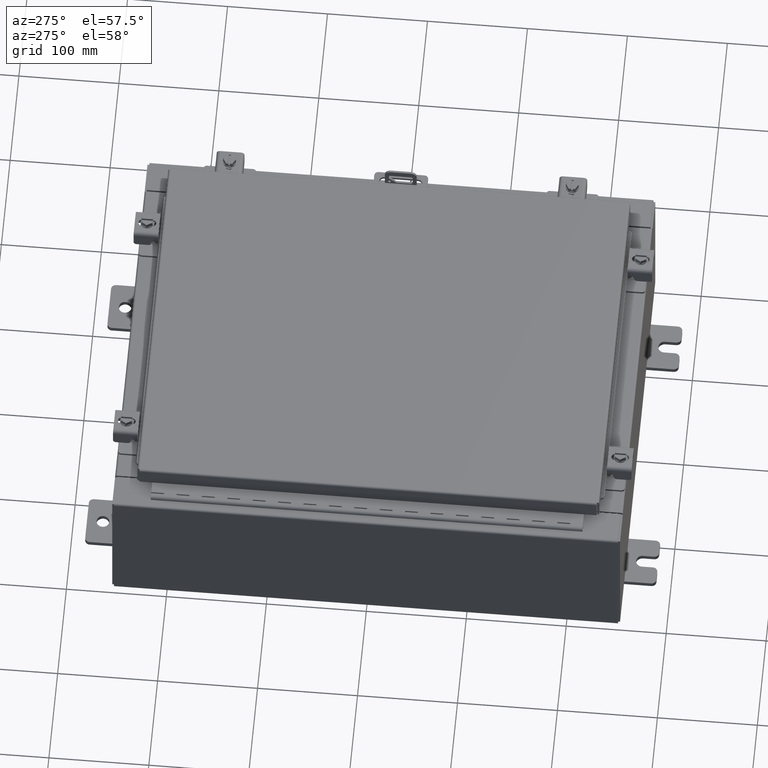
[diagram: clean part render]
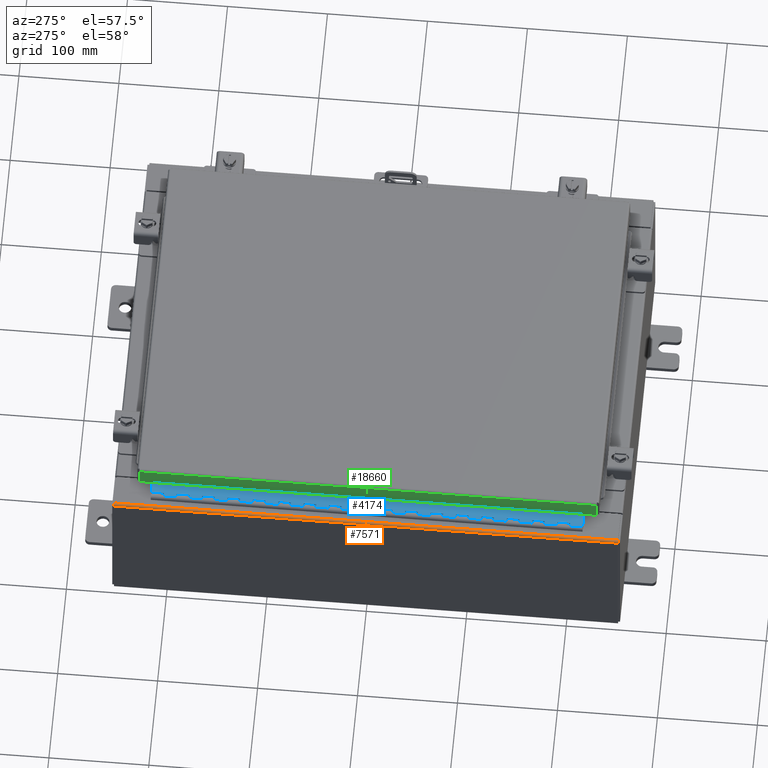
[diagram: same view with three faces highlighted in distinct colors, each labeled with its STEP entity id]
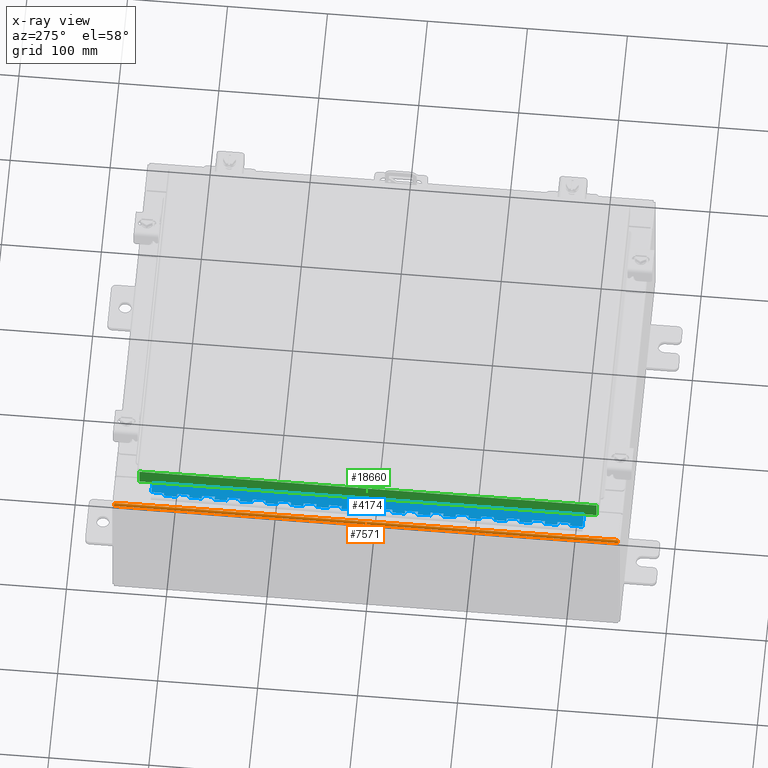
[diagram: x-ray of the same camera — body ghosted, the three highlighted faces saturated]
A machine part, auxiliary view with three faces highlighted in distinct colors.
The next image is the same camera in x-ray (body ghosted, the three faces saturated) — at least one of them is partly hidden behind the body in this view.
Their STEP definitions:

[orange] entity #7571 — the highlighted cylindrical surface (edge-blend (fillet) strip) has radius 2.2276 mm, axis along (-0, -1, -0).
#4315 = FACE_OUTER_BOUND ( 'NONE', #11433, .T. ) ;
#5031 = AXIS2_PLACEMENT_3D ( 'NONE', #12334, #28187, #14588 ) ;
#5075 = LINE ( 'NONE', #14964, #10418 ) ;
#5908 = DIRECTION ( 'NONE',  ( 0.0000000000000000000, 1.000000000000000000, 0.0000000000000000000 ) ) ;
#6106 = ORIENTED_EDGE ( 'NONE', *, *, #6834, .T. ) ;
#6834 = EDGE_CURVE ( 'NONE', #11767, #11529, #27495, .T. ) ;
#7571 = ADVANCED_FACE ( 'NONE', ( #4315 ), #27072, .T. ) ;
#7618 = DIRECTION ( 'NONE',  ( -0.0000000000000000000, 1.000000000000000000, -5.504816970095139000E-017 ) ) ;
#8008 = CARTESIAN_POINT ( 'NONE',  ( -7.912300000000017900, 9.925299999999996500, 5.925299999999999100 ) ) ;
#8596 = EDGE_CURVE ( 'NONE', #11767, #10946, #25597, .T. ) ;
#8875 = CARTESIAN_POINT ( 'NONE',  ( -7.912300000000017900, -9.925299999999998200, 5.925300000000000000 ) ) ;
#10271 = CARTESIAN_POINT ( 'NONE',  ( -7.912300000000017900, -9.925300000000000000, 5.837599999999999200 ) ) ;
#10413 = CARTESIAN_POINT ( 'NONE',  ( -8.000000000000017800, -9.925300000000000000, 5.837599999999999200 ) ) ;
#10418 = VECTOR ( 'NONE', #5908, 39.37007874015748100 ) ;
#10717 = CARTESIAN_POINT ( 'NONE',  ( -8.000000000000017800, 9.925299999999996500, 5.837599999999999200 ) ) ;
#10946 = VERTEX_POINT ( 'NONE', #10413 ) ;
#11017 = VERTEX_POINT ( 'NONE', #10717 ) ;
#11433 = EDGE_LOOP ( 'NONE', ( #26999, #24791, #6106, #19754 ) ) ;
#11529 = VERTEX_POINT ( 'NONE', #8008 ) ;
#11767 = VERTEX_POINT ( 'NONE', #8875 ) ;
#12130 = CARTESIAN_POINT ( 'NONE',  ( -7.912300000000017900, 9.925299999999998200, 5.925299999999999100 ) ) ;
#12293 = DIRECTION ( 'NONE',  ( 0.0000000000000000000, 1.000000000000000000, 0.0000000000000000000 ) ) ;
#12334 = CARTESIAN_POINT ( 'NONE',  ( -7.912300000000017900, -9.925300000000000000, 5.837599999999999200 ) ) ;
#13698 = EDGE_CURVE ( 'NONE', #11017, #11529, #14383, .T. ) ;
#14383 = CIRCLE ( 'NONE', #22685, 0.08770000000000026400 ) ;
#14588 = DIRECTION ( 'NONE',  ( 0.0000000000000000000, 0.0000000000000000000, -1.000000000000000000 ) ) ;
#14841 = DIRECTION ( 'NONE',  ( -0.0000000000000000000, -1.000000000000000000, -0.0000000000000000000 ) ) ;
#14939 = AXIS2_PLACEMENT_3D ( 'NONE', #10271, #14841, #28441 ) ;
#14964 = CARTESIAN_POINT ( 'NONE',  ( -8.000000000000017800, -9.925300000000000000, 5.837599999999999200 ) ) ;
#17551 = EDGE_CURVE ( 'NONE', #10946, #11017, #5075, .T. ) ;
#19754 = ORIENTED_EDGE ( 'NONE', *, *, #13698, .F. ) ;
#21466 = VECTOR ( 'NONE', #7618, 39.37007874015748100 ) ;
#22685 = AXIS2_PLACEMENT_3D ( 'NONE', #25857, #12293, #28153 ) ;
#24791 = ORIENTED_EDGE ( 'NONE', *, *, #8596, .F. ) ;
#25597 = CIRCLE ( 'NONE', #5031, 0.08770000000000026400 ) ;
#25857 = CARTESIAN_POINT ( 'NONE',  ( -7.912300000000017900, 9.925299999999996500, 5.837599999999999200 ) ) ;
#26999 = ORIENTED_EDGE ( 'NONE', *, *, #17551, .F. ) ;
#27072 = CYLINDRICAL_SURFACE ( 'NONE', #14939, 0.08770000000000026400 ) ;
#27495 = LINE ( 'NONE', #12130, #21466 ) ;
#28153 = DIRECTION ( 'NONE',  ( 0.0000000000000000000, 0.0000000000000000000, -1.000000000000000000 ) ) ;
#28187 = DIRECTION ( 'NONE',  ( -0.0000000000000000000, -1.000000000000000000, -0.0000000000000000000 ) ) ;
#28441 = DIRECTION ( 'NONE',  ( -1.245996804407870000E-014, 0.0000000000000000000, 1.000000000000000000 ) ) ;

[blue] entity #4174 — the highlighted planar face has unit normal (-0, -0, 1).
#46 = DIRECTION ( 'NONE',  ( 0.0000000000000000000, -0.0000000000000000000, -1.000000000000000000 ) ) ;
#50 = DIRECTION ( 'NONE',  ( 0.0000000000000000000, 0.0000000000000000000, 1.000000000000000000 ) ) ;
#72 = CARTESIAN_POINT ( 'NONE',  ( -0.6869999999999978300, 0.6754999999999996600, -14.99999999999999800 ) ) ;
#80 = ORIENTED_EDGE ( 'NONE', *, *, #29222, .F. ) ;
#101 = VECTOR ( 'NONE', #19774, 39.37007874015748100 ) ;
#137 = ORIENTED_EDGE ( 'NONE', *, *, #14637, .T. ) ;
#204 = LINE ( 'NONE', #23957, #6274 ) ;
#218 = VECTOR ( 'NONE', #26793, 39.37007874015748100 ) ;
#233 = VERTEX_POINT ( 'NONE', #25913 ) ;
#285 = VECTOR ( 'NONE', #5154, 39.37007874015748100 ) ;
#314 = CARTESIAN_POINT ( 'NONE',  ( -0.6869999999999982800, 0.5504999999999997700, -12.49999999999999800 ) ) ;
#381 = EDGE_CURVE ( 'NONE', #1120, #26564, #2727, .T. ) ;
#430 = CARTESIAN_POINT ( 'NONE',  ( -0.6869999999999973900, 0.8004999999999995500, -4.000000000000000000 ) ) ;
#472 = VERTEX_POINT ( 'NONE', #18258 ) ;
#486 = CARTESIAN_POINT ( 'NONE',  ( -0.6869999999999982800, 0.5504999999999997700, -7.499999999999999100 ) ) ;
#512 = CARTESIAN_POINT ( 'NONE',  ( -0.6869999999999982800, 0.5504999999999997700, -4.500000000000000000 ) ) ;
#596 = LINE ( 'NONE', #23922, #17327 ) ;
#597 = EDGE_CURVE ( 'NONE', #666, #7732, #21937, .T. ) ;
#610 = DIRECTION ( 'NONE',  ( 0.0000000000000000000, -0.0000000000000000000, -1.000000000000000000 ) ) ;
#666 = VERTEX_POINT ( 'NONE', #14882 ) ;
#708 = CARTESIAN_POINT ( 'NONE',  ( -0.6869999999999978300, 0.6754999999999996600, -17.00000000000000000 ) ) ;
#743 = CARTESIAN_POINT ( 'NONE',  ( -0.6869999999999982800, 0.5504999999999997700, -13.50000000000000000 ) ) ;
#814 = VECTOR ( 'NONE', #25143, 39.37007874015748100 ) ;
#843 = CARTESIAN_POINT ( 'NONE',  ( -0.6869999999999978300, 0.6754999999999996600, -9.000000000000000000 ) ) ;
#935 = EDGE_CURVE ( 'NONE', #23140, #14782, #2690, .T. ) ;
#1051 = EDGE_CURVE ( 'NONE', #7281, #15186, #10521, .T. ) ;
#1118 = CARTESIAN_POINT ( 'NONE',  ( -0.6869999999999973900, 0.8004999999999995500, -9.000000000000000000 ) ) ;
#1120 = VERTEX_POINT ( 'NONE', #28410 ) ;
#1189 = EDGE_CURVE ( 'NONE', #27347, #1848, #8391, .T. ) ;
#1250 = DIRECTION ( 'NONE',  ( -3.389037039080723100E-015, -1.000000000000000000, 0.0000000000000000000 ) ) ;
#1268 = LINE ( 'NONE', #12712, #24737 ) ;
#1285 = DIRECTION ( 'NONE',  ( 0.0000000000000000000, 0.0000000000000000000, 1.000000000000000000 ) ) ;
#1320 = CARTESIAN_POINT ( 'NONE',  ( -0.6869999999999978300, 0.6754999999999996600, -5.000000000000000000 ) ) ;
#1331 = CARTESIAN_POINT ( 'NONE',  ( -0.6869999999999982800, 0.5504999999999997700, -9.000000000000000000 ) ) ;
#1448 = CARTESIAN_POINT ( 'NONE',  ( -0.6869999999999973900, 0.8004999999999995500, -6.000000000000000900 ) ) ;
#1497 = LINE ( 'NONE', #14464, #24968 ) ;
#1560 = ORIENTED_EDGE ( 'NONE', *, *, #10915, .F. ) ;
#1570 = VERTEX_POINT ( 'NONE', #23733 ) ;
#1586 = VECTOR ( 'NONE', #16740, 39.37007874015748100 ) ;
#1848 = VERTEX_POINT ( 'NONE', #18741 ) ;
#1865 = ORIENTED_EDGE ( 'NONE', *, *, #2869, .F. ) ;
#1870 = DIRECTION ( 'NONE',  ( 0.0000000000000000000, -0.0000000000000000000, -1.000000000000000000 ) ) ;
#1933 = ORIENTED_EDGE ( 'NONE', *, *, #25178, .F. ) ;
#2051 = LINE ( 'NONE', #12637, #25525 ) ;
#2148 = ORIENTED_EDGE ( 'NONE', *, *, #17094, .T. ) ;
#2163 = VERTEX_POINT ( 'NONE', #26252 ) ;
#2165 = VERTEX_POINT ( 'NONE', #24354 ) ;
#2167 = VECTOR ( 'NONE', #1285, 39.37007874015748100 ) ;
#2177 = VECTOR ( 'NONE', #4654, 39.37007874015748100 ) ;
#2437 = DIRECTION ( 'NONE',  ( -3.389037039080723100E-015, -1.000000000000000000, 0.0000000000000000000 ) ) ;
#2458 = VERTEX_POINT ( 'NONE', #2581 ) ;
#2490 = CARTESIAN_POINT ( 'NONE',  ( -0.6869999999999982800, 0.5504999999999997700, -1.499999999999999800 ) ) ;
#2539 = VECTOR ( 'NONE', #3733, 39.37007874015748100 ) ;
#2543 = CARTESIAN_POINT ( 'NONE',  ( -0.6869999999999978300, 0.6754999999999996600, -2.000000000000000000 ) ) ;
#2581 = CARTESIAN_POINT ( 'NONE',  ( -0.6869999999999978300, 0.6754999999999996600, -11.00000000000000000 ) ) ;
#2585 = LINE ( 'NONE', #17940, #26042 ) ;
#2650 = EDGE_CURVE ( 'NONE', #22137, #17771, #20390, .T. ) ;
#2658 = CARTESIAN_POINT ( 'NONE',  ( -0.6869999999999978300, 0.6754999999999996600, -12.99999999999999800 ) ) ;
#2686 = ORIENTED_EDGE ( 'NONE', *, *, #6469, .F. ) ;
#2690 = LINE ( 'NONE', #12444, #8047 ) ;
#2722 = VECTOR ( 'NONE', #5500, 39.37007874015748100 ) ;
#2727 = LINE ( 'NONE', #11792, #20173 ) ;
#2749 = DIRECTION ( 'NONE',  ( 3.389037039080723100E-015, 1.000000000000000000, -0.0000000000000000000 ) ) ;
#2869 = EDGE_CURVE ( 'NONE', #8616, #28524, #14681, .T. ) ;
#2883 = VECTOR ( 'NONE', #21518, 39.37007874015748100 ) ;
#2909 = LINE ( 'NONE', #11373, #27078 ) ;
#2949 = EDGE_CURVE ( 'NONE', #12936, #26286, #25301, .T. ) ;
#3078 = VECTOR ( 'NONE', #28720, 39.37007874015748100 ) ;
#3114 = VERTEX_POINT ( 'NONE', #743 ) ;
#3162 = VECTOR ( 'NONE', #11599, 39.37007874015748100 ) ;
#3191 = LINE ( 'NONE', #18794, #26672 ) ;
#3211 = CARTESIAN_POINT ( 'NONE',  ( -0.6869999999999978300, 0.6754999999999996600, -7.499999999999999100 ) ) ;
#3242 = LINE ( 'NONE', #1448, #2539 ) ;
#3341 = CARTESIAN_POINT ( 'NONE',  ( -0.6869999999999978300, 0.6754999999999996600, -8.500000000000000000 ) ) ;
#3398 = VERTEX_POINT ( 'NONE', #1331 ) ;
#3461 = CARTESIAN_POINT ( 'NONE',  ( -0.6869999999999978300, 0.6754999999999996600, -17.00000000000000000 ) ) ;
#3638 = DIRECTION ( 'NONE',  ( 3.389037039080723100E-015, 1.000000000000000000, -0.0000000000000000000 ) ) ;
#3733 = DIRECTION ( 'NONE',  ( 3.389037039080723100E-015, 1.000000000000000000, -0.0000000000000000000 ) ) ;
#3740 = VECTOR ( 'NONE', #20034, 39.37007874015748100 ) ;
#3750 = CARTESIAN_POINT ( 'NONE',  ( -0.6869999999999982800, 0.5504999999999997700, -3.500000000000000000 ) ) ;
#3846 = VECTOR ( 'NONE', #14680, 39.37007874015748100 ) ;
#3953 = DIRECTION ( 'NONE',  ( -3.389037039080723100E-015, -1.000000000000000000, 0.0000000000000000000 ) ) ;
#3962 = VECTOR ( 'NONE', #20637, 39.37007874015748100 ) ;
#3964 = ORIENTED_EDGE ( 'NONE', *, *, #22943, .F. ) ;
#3965 = VECTOR ( 'NONE', #50, 39.37007874015748100 ) ;
#3986 = EDGE_CURVE ( 'NONE', #14836, #27347, #25739, .T. ) ;
#4062 = LINE ( 'NONE', #13441, #26103 ) ;
#4112 = ORIENTED_EDGE ( 'NONE', *, *, #21932, .F. ) ;
#4174 = ADVANCED_FACE ( 'NONE', ( #21497 ), #12140, .T. ) ;
#4193 = CARTESIAN_POINT ( 'NONE',  ( -0.6869999999999973900, 0.8004999999999995500, -16.00000000000000000 ) ) ;
#4231 = CARTESIAN_POINT ( 'NONE',  ( -0.6869999999999982800, 0.5504999999999997700, -2.500000000000000000 ) ) ;
#4234 = EDGE_CURVE ( 'NONE', #6882, #2165, #13311, .T. ) ;
#4390 = VERTEX_POINT ( 'NONE', #15553 ) ;
#4522 = EDGE_CURVE ( 'NONE', #24466, #13046, #12944, .T. ) ;
#4543 = VECTOR ( 'NONE', #21213, 39.37007874015748100 ) ;
#4576 = EDGE_CURVE ( 'NONE', #13442, #15213, #22891, .T. ) ;
#4613 = CARTESIAN_POINT ( 'NONE',  ( -0.6869999999999982800, 0.5504999999999997700, -4.000000000000000000 ) ) ;
#4654 = DIRECTION ( 'NONE',  ( 3.389037039080723100E-015, 1.000000000000000000, -0.0000000000000000000 ) ) ;
#4783 = VERTEX_POINT ( 'NONE', #10734 ) ;
#5069 = CARTESIAN_POINT ( 'NONE',  ( -0.6869999999999978300, 0.6754999999999996600, -17.00000000000000000 ) ) ;
#5076 = CARTESIAN_POINT ( 'NONE',  ( -0.6869999999999973900, 0.8004999999999995500, -16.50000000000000000 ) ) ;
#5103 = VECTOR ( 'NONE', #25973, 39.37007874015748100 ) ;
#5153 = CARTESIAN_POINT ( 'NONE',  ( -0.6869999999999982800, 0.5504999999999997700, -1.499999999999999800 ) ) ;
#5154 = DIRECTION ( 'NONE',  ( 0.0000000000000000000, -0.0000000000000000000, -1.000000000000000000 ) ) ;
#5283 = EDGE_CURVE ( 'NONE', #4783, #5602, #12264, .T. ) ;
#5305 = VERTEX_POINT ( 'NONE', #15377 ) ;
#5387 = LINE ( 'NONE', #7941, #28880 ) ;
#5395 = DIRECTION ( 'NONE',  ( 3.389037039080723100E-015, 1.000000000000000000, -0.0000000000000000000 ) ) ;
#5500 = DIRECTION ( 'NONE',  ( 0.0000000000000000000, -0.0000000000000000000, -1.000000000000000000 ) ) ;
#5556 = VECTOR ( 'NONE', #2749, 39.37007874015748100 ) ;
#5602 = VERTEX_POINT ( 'NONE', #23199 ) ;
#5616 = LINE ( 'NONE', #17319, #23057 ) ;
#5709 = EDGE_CURVE ( 'NONE', #5602, #23303, #1497, .T. ) ;
#5777 = ORIENTED_EDGE ( 'NONE', *, *, #21732, .F. ) ;
#5843 = VECTOR ( 'NONE', #9004, 39.37007874015748100 ) ;
#5895 = ORIENTED_EDGE ( 'NONE', *, *, #23792, .F. ) ;
#5916 = CARTESIAN_POINT ( 'NONE',  ( -0.6869999999999978300, 0.6754999999999996600, -17.00000000000000000 ) ) ;
#5918 = VERTEX_POINT ( 'NONE', #12866 ) ;
#6024 = LINE ( 'NONE', #5916, #17405 ) ;
#6065 = DIRECTION ( 'NONE',  ( 0.0000000000000000000, -0.0000000000000000000, -1.000000000000000000 ) ) ;
#6066 = CARTESIAN_POINT ( 'NONE',  ( -0.6869999999999973900, 0.8004999999999995500, -2.500000000000000000 ) ) ;
#6081 = ORIENTED_EDGE ( 'NONE', *, *, #6158, .F. ) ;
#6158 = EDGE_CURVE ( 'NONE', #15231, #11274, #2909, .T. ) ;
#6159 = LINE ( 'NONE', #18321, #23573 ) ;
#6193 = EDGE_CURVE ( 'NONE', #17232, #13195, #25656, .T. ) ;
#6214 = ORIENTED_EDGE ( 'NONE', *, *, #3986, .F. ) ;
#6251 = ORIENTED_EDGE ( 'NONE', *, *, #10054, .F. ) ;
#6274 = VECTOR ( 'NONE', #17119, 39.37007874015748100 ) ;
#6286 = LINE ( 'NONE', #13210, #218 ) ;
#6321 = EDGE_CURVE ( 'NONE', #2163, #22109, #5387, .T. ) ;
#6358 = DIRECTION ( 'NONE',  ( 0.0000000000000000000, 0.0000000000000000000, 1.000000000000000000 ) ) ;
#6371 = DIRECTION ( 'NONE',  ( -3.389037039080723100E-015, -1.000000000000000000, 0.0000000000000000000 ) ) ;
#6397 = ORIENTED_EDGE ( 'NONE', *, *, #25057, .T. ) ;
#6414 = EDGE_CURVE ( 'NONE', #12152, #14051, #3242, .T. ) ;
#6462 = ORIENTED_EDGE ( 'NONE', *, *, #27454, .T. ) ;
#6469 = EDGE_CURVE ( 'NONE', #7385, #1120, #24576, .T. ) ;
#6485 = LINE ( 'NONE', #21093, #18582 ) ;
#6499 = VERTEX_POINT ( 'NONE', #4231 ) ;
#6530 = ORIENTED_EDGE ( 'NONE', *, *, #15601, .F. ) ;
#6598 = CARTESIAN_POINT ( 'NONE',  ( -0.6869999999999982800, 0.5504999999999997700, -16.50000000000000000 ) ) ;
#6638 = LINE ( 'NONE', #19625, #11273 ) ;
#6649 = VERTEX_POINT ( 'NONE', #4613 ) ;
#6663 = CARTESIAN_POINT ( 'NONE',  ( -0.6869999999999978300, 0.6754999999999996600, -1.000000000000000000 ) ) ;
#6737 = LINE ( 'NONE', #1118, #23447 ) ;
#6847 = ORIENTED_EDGE ( 'NONE', *, *, #1189, .F. ) ;
#6851 = CARTESIAN_POINT ( 'NONE',  ( -0.6869999999999973900, 0.8004999999999995500, -4.500000000000000000 ) ) ;
#6882 = VERTEX_POINT ( 'NONE', #3211 ) ;
#6964 = ORIENTED_EDGE ( 'NONE', *, *, #935, .T. ) ;
#7005 = VECTOR ( 'NONE', #16450, 39.37007874015748100 ) ;
#7097 = EDGE_CURVE ( 'NONE', #14095, #233, #27099, .T. ) ;
#7140 = EDGE_CURVE ( 'NONE', #23303, #2458, #14337, .T. ) ;
#7145 = LINE ( 'NONE', #11138, #13180 ) ;
#7281 = VERTEX_POINT ( 'NONE', #11488 ) ;
#7311 = VERTEX_POINT ( 'NONE', #11705 ) ;
#7333 = CARTESIAN_POINT ( 'NONE',  ( -0.6869999999999982800, 0.5504999999999997700, -6.499999999999999100 ) ) ;
#7385 = VERTEX_POINT ( 'NONE', #512 ) ;
#7732 = VERTEX_POINT ( 'NONE', #72 ) ;
#7874 = EDGE_CURVE ( 'NONE', #2165, #22137, #8606, .T. ) ;
#7896 = CARTESIAN_POINT ( 'NONE',  ( -0.6869999999999973900, 0.8004999999999995500, -9.500000000000000000 ) ) ;
#7941 = CARTESIAN_POINT ( 'NONE',  ( -0.6869999999999978300, 0.6754999999999996600, -17.00000000000000000 ) ) ;
#8047 = VECTOR ( 'NONE', #12119, 39.37007874015748100 ) ;
#8060 = VECTOR ( 'NONE', #1870, 39.37007874015748100 ) ;
#8282 = VERTEX_POINT ( 'NONE', #13309 ) ;
#8391 = LINE ( 'NONE', #15867, #1586 ) ;
#8498 = CARTESIAN_POINT ( 'NONE',  ( -0.6869999999999973900, 0.8004999999999995500, -0.5000000000000000000 ) ) ;
#8541 = VECTOR ( 'NONE', #24355, 39.37007874015748100 ) ;
#8606 = LINE ( 'NONE', #486, #25994 ) ;
#8616 = VERTEX_POINT ( 'NONE', #25974 ) ;
#8629 = CARTESIAN_POINT ( 'NONE',  ( -0.6869999999999973900, 0.8004999999999995500, -10.00000000000000000 ) ) ;
#8634 = VECTOR ( 'NONE', #3953, 39.37007874015748100 ) ;
#8682 = ORIENTED_EDGE ( 'NONE', *, *, #9366, .T. ) ;
#8775 = LINE ( 'NONE', #22842, #20163 ) ;
#8777 = LINE ( 'NONE', #23591, #2722 ) ;
#8982 = LINE ( 'NONE', #6066, #20376 ) ;
#8985 = CARTESIAN_POINT ( 'NONE',  ( -0.6869999999999982800, 0.5504999999999997700, -10.00000000000000000 ) ) ;
#8991 = VECTOR ( 'NONE', #26862, 39.37007874015748100 ) ;
#9004 = DIRECTION ( 'NONE',  ( -3.389037039080723100E-015, -1.000000000000000000, 0.0000000000000000000 ) ) ;
#9074 = VERTEX_POINT ( 'NONE', #314 ) ;
#9149 = DIRECTION ( 'NONE',  ( -3.389037039080723100E-015, -1.000000000000000000, 0.0000000000000000000 ) ) ;
#9177 = ORIENTED_EDGE ( 'NONE', *, *, #13313, .F. ) ;
#9233 = CARTESIAN_POINT ( 'NONE',  ( -0.6869999999999978300, 0.6754999999999996600, -16.00000000000000000 ) ) ;
#9239 = VERTEX_POINT ( 'NONE', #17295 ) ;
#9264 = DIRECTION ( 'NONE',  ( 0.0000000000000000000, 0.0000000000000000000, 1.000000000000000000 ) ) ;
#9285 = CARTESIAN_POINT ( 'NONE',  ( -0.6869999999999982800, 0.5504999999999997700, -6.499999999999999100 ) ) ;
#9355 = ORIENTED_EDGE ( 'NONE', *, *, #28163, .F. ) ;
#9357 = ORIENTED_EDGE ( 'NONE', *, *, #17845, .T. ) ;
#9366 = EDGE_CURVE ( 'NONE', #6882, #233, #13872, .T. ) ;
#9537 = CARTESIAN_POINT ( 'NONE',  ( -0.6870000000000022800, -0.6245000000000003900, -17.00000000000000000 ) ) ;
#9841 = VECTOR ( 'NONE', #19546, 39.37007874015748100 ) ;
#10018 = ORIENTED_EDGE ( 'NONE', *, *, #23987, .F. ) ;
#10038 = LINE ( 'NONE', #13620, #3965 ) ;
#10054 = EDGE_CURVE ( 'NONE', #15186, #1570, #21333, .T. ) ;
#10193 = CARTESIAN_POINT ( 'NONE',  ( -0.6869999999999973900, 0.8004999999999995500, -14.49999999999999800 ) ) ;
#10521 = LINE ( 'NONE', #10193, #28657 ) ;
#10547 = EDGE_CURVE ( 'NONE', #7311, #7385, #22023, .T. ) ;
#10589 = DIRECTION ( 'NONE',  ( -3.389037039080723100E-015, -1.000000000000000000, 0.0000000000000000000 ) ) ;
#10596 = CARTESIAN_POINT ( 'NONE',  ( -0.6869999999999973900, 0.8004999999999995500, -6.499999999999999100 ) ) ;
#10734 = CARTESIAN_POINT ( 'NONE',  ( -0.6869999999999978300, 0.6754999999999996600, -10.50000000000000000 ) ) ;
#10735 = EDGE_CURVE ( 'NONE', #28736, #17232, #18461, .T. ) ;
#10797 = CARTESIAN_POINT ( 'NONE',  ( -0.6869999999999982800, 0.5504999999999997700, -14.49999999999999800 ) ) ;
#10846 = LINE ( 'NONE', #19946, #28981 ) ;
#10901 = VERTEX_POINT ( 'NONE', #3341 ) ;
#10915 = EDGE_CURVE ( 'NONE', #5305, #18437, #2051, .T. ) ;
#11050 = CARTESIAN_POINT ( 'NONE',  ( -0.6869999999999978300, 0.6754999999999996600, -13.50000000000000000 ) ) ;
#11138 = CARTESIAN_POINT ( 'NONE',  ( -0.6869999999999982800, 0.5504999999999997700, -13.50000000000000000 ) ) ;
#11155 = ORIENTED_EDGE ( 'NONE', *, *, #20349, .F. ) ;
#11157 = DIRECTION ( 'NONE',  ( 3.389037039080723100E-015, 1.000000000000000000, -0.0000000000000000000 ) ) ;
#11273 = VECTOR ( 'NONE', #10589, 39.37007874015748100 ) ;
#11274 = VERTEX_POINT ( 'NONE', #27480 ) ;
#11354 = LINE ( 'NONE', #18913, #4543 ) ;
#11373 = CARTESIAN_POINT ( 'NONE',  ( -0.6869999999999973900, 0.8004999999999995500, -3.500000000000000000 ) ) ;
#11466 = EDGE_CURVE ( 'NONE', #4390, #23023, #24787, .T. ) ;
#11471 = CARTESIAN_POINT ( 'NONE',  ( -0.6869999999999982800, 0.5504999999999997700, -16.00000000000000000 ) ) ;
#11488 = CARTESIAN_POINT ( 'NONE',  ( -0.6869999999999978300, 0.6754999999999996600, -14.49999999999999800 ) ) ;
#11537 = DIRECTION ( 'NONE',  ( -3.389037039080723100E-015, -1.000000000000000000, 0.0000000000000000000 ) ) ;
#11599 = DIRECTION ( 'NONE',  ( 0.0000000000000000000, -0.0000000000000000000, -1.000000000000000000 ) ) ;
#11641 = ORIENTED_EDGE ( 'NONE', *, *, #14725, .F. ) ;
#11647 = LINE ( 'NONE', #430, #5556 ) ;
#11705 = CARTESIAN_POINT ( 'NONE',  ( -0.6869999999999978300, 0.6754999999999996600, -4.500000000000000000 ) ) ;
#11757 = DIRECTION ( 'NONE',  ( 1.000000000000000000, -3.369016658928398200E-015, 0.0000000000000000000 ) ) ;
#11792 = CARTESIAN_POINT ( 'NONE',  ( -0.6869999999999973900, 0.8004999999999995500, -5.000000000000000000 ) ) ;
#11837 = VECTOR ( 'NONE', #22251, 39.37007874015748100 ) ;
#11935 = CARTESIAN_POINT ( 'NONE',  ( -0.6869999999999978300, 0.6754999999999996600, -11.99999999999999800 ) ) ;
#11944 = LINE ( 'NONE', #24798, #5843 ) ;
#12044 = EDGE_CURVE ( 'NONE', #5918, #2458, #23361, .T. ) ;
#12119 = DIRECTION ( 'NONE',  ( 0.0000000000000000000, 0.0000000000000000000, 1.000000000000000000 ) ) ;
#12140 = PLANE ( 'NONE',  #14232 ) ;
#12152 = VERTEX_POINT ( 'NONE', #28255 ) ;
#12227 = EDGE_CURVE ( 'NONE', #6499, #9239, #204, .T. ) ;
#12257 = CARTESIAN_POINT ( 'NONE',  ( -0.6869999999999982800, 0.5504999999999997700, -15.50000000000000000 ) ) ;
#12264 = LINE ( 'NONE', #28798, #101 ) ;
#12407 = EDGE_CURVE ( 'NONE', #14340, #21296, #26155, .T. ) ;
#12428 = CARTESIAN_POINT ( 'NONE',  ( -0.6869999999999978300, 0.6754999999999996600, -17.00000000000000000 ) ) ;
#12444 = CARTESIAN_POINT ( 'NONE',  ( -0.6869999999999978300, 0.6754999999999996600, -17.00000000000000000 ) ) ;
#12538 = EDGE_LOOP ( 'NONE', ( #6214, #22159, #12662, #1865, #28290, #28062, #13466, #11155, #13412, #25155, #6251, #23709, #6397, #26903, #5777, #6530, #15048, #1933, #17734, #9177, #6462, #21230, #20213, #11641, #18734, #17157, #19054, #13689, #24973, #16461, #14412, #18797, #16272, #21815, #4112, #15220, #12670, #25801, #18216, #23691, #8682, #20024, #9355, #28976, #13821, #23380, #26832, #5895, #14308, #19061, #2686, #19272, #137, #27865, #15033, #6081, #9357, #20912, #13065, #17991, #6964, #10018, #23337, #16248, #2148, #1560, #80, #3964, #23509, #6847 ) ) ;
#12637 = CARTESIAN_POINT ( 'NONE',  ( -0.6869999999999973900, 0.8004999999999995500, -1.000000000000000000 ) ) ;
#12662 = ORIENTED_EDGE ( 'NONE', *, *, #14529, .F. ) ;
#12670 = ORIENTED_EDGE ( 'NONE', *, *, #19196, .T. ) ;
#12712 = CARTESIAN_POINT ( 'NONE',  ( -0.6869999999999973900, 0.8004999999999995500, -12.99999999999999800 ) ) ;
#12769 = VERTEX_POINT ( 'NONE', #28119 ) ;
#12866 = CARTESIAN_POINT ( 'NONE',  ( -0.6869999999999978300, 0.6754999999999996600, -11.50000000000000000 ) ) ;
#12877 = VECTOR ( 'NONE', #20138, 39.37007874015748100 ) ;
#12936 = VERTEX_POINT ( 'NONE', #13206 ) ;
#12944 = LINE ( 'NONE', #2490, #814 ) ;
#13046 = VERTEX_POINT ( 'NONE', #29487 ) ;
#13065 = ORIENTED_EDGE ( 'NONE', *, *, #12227, .F. ) ;
#13119 = CARTESIAN_POINT ( 'NONE',  ( -0.6869999999999982800, 0.5504999999999997700, -4.500000000000000000 ) ) ;
#13146 = VERTEX_POINT ( 'NONE', #13897 ) ;
#13180 = VECTOR ( 'NONE', #27002, 39.37007874015748100 ) ;
#13195 = VERTEX_POINT ( 'NONE', #11935 ) ;
#13206 = CARTESIAN_POINT ( 'NONE',  ( -0.6869999999999978300, 0.6754999999999996600, -6.499999999999999100 ) ) ;
#13210 = CARTESIAN_POINT ( 'NONE',  ( -0.6869999999999978300, 0.6754999999999996600, -17.00000000000000000 ) ) ;
#13265 = CARTESIAN_POINT ( 'NONE',  ( -0.6869999999999973900, 0.8004999999999995500, -11.00000000000000000 ) ) ;
#13309 = CARTESIAN_POINT ( 'NONE',  ( -0.6869999999999982800, 0.5504999999999997700, -5.500000000000000000 ) ) ;
#13311 = LINE ( 'NONE', #26622, #25358 ) ;
#13313 = EDGE_CURVE ( 'NONE', #15216, #9074, #10846, .T. ) ;
#13412 = ORIENTED_EDGE ( 'NONE', *, *, #597, .T. ) ;
#13441 = CARTESIAN_POINT ( 'NONE',  ( -0.6869999999999973900, 0.8004999999999995500, -2.999999999999999600 ) ) ;
#13442 = VERTEX_POINT ( 'NONE', #8985 ) ;
#13466 = ORIENTED_EDGE ( 'NONE', *, *, #12407, .F. ) ;
#13493 = DIRECTION ( 'NONE',  ( 0.0000000000000000000, -0.0000000000000000000, -1.000000000000000000 ) ) ;
#13620 = CARTESIAN_POINT ( 'NONE',  ( -0.6869999999999978300, 0.6754999999999996600, -17.00000000000000000 ) ) ;
#13689 = ORIENTED_EDGE ( 'NONE', *, *, #5283, .F. ) ;
#13821 = ORIENTED_EDGE ( 'NONE', *, *, #26240, .T. ) ;
#13861 = CARTESIAN_POINT ( 'NONE',  ( -0.6869999999999978300, 0.6754999999999996600, -17.00000000000000000 ) ) ;
#13872 = LINE ( 'NONE', #22357, #19912 ) ;
#13875 = CARTESIAN_POINT ( 'NONE',  ( -0.6869999999999982800, 0.5504999999999997700, -14.49999999999999800 ) ) ;
#13897 = CARTESIAN_POINT ( 'NONE',  ( -0.6869999999999978300, 0.6754999999999996600, -2.999999999999999600 ) ) ;
#14051 = VERTEX_POINT ( 'NONE', #20215 ) ;
#14057 = CARTESIAN_POINT ( 'NONE',  ( -0.6869999999999982800, 0.5504999999999997700, -11.50000000000000000 ) ) ;
#14095 = VERTEX_POINT ( 'NONE', #18197 ) ;
#14232 = AXIS2_PLACEMENT_3D ( 'NONE', #9537, #11757, #16803 ) ;
#14257 = DIRECTION ( 'NONE',  ( 0.0000000000000000000, 0.0000000000000000000, 1.000000000000000000 ) ) ;
#14288 = VERTEX_POINT ( 'NONE', #27932 ) ;
#14308 = ORIENTED_EDGE ( 'NONE', *, *, #21379, .T. ) ;
#14337 = LINE ( 'NONE', #13265, #8991 ) ;
#14340 = VERTEX_POINT ( 'NONE', #12257 ) ;
#14412 = ORIENTED_EDGE ( 'NONE', *, *, #19031, .F. ) ;
#14453 = EDGE_CURVE ( 'NONE', #18340, #27559, #596, .T. ) ;
#14464 = CARTESIAN_POINT ( 'NONE',  ( -0.6869999999999982800, 0.5504999999999997700, -10.50000000000000000 ) ) ;
#14484 = LINE ( 'NONE', #24218, #3078 ) ;
#14529 = EDGE_CURVE ( 'NONE', #28524, #26224, #14484, .T. ) ;
#14550 = LINE ( 'NONE', #28298, #3846 ) ;
#14637 = EDGE_CURVE ( 'NONE', #7311, #27427, #6286, .T. ) ;
#14680 = DIRECTION ( 'NONE',  ( -3.389037039080723100E-015, -1.000000000000000000, 0.0000000000000000000 ) ) ;
#14681 = LINE ( 'NONE', #5076, #8634 ) ;
#14699 = VERTEX_POINT ( 'NONE', #22750 ) ;
#14725 = EDGE_CURVE ( 'NONE', #5918, #28736, #8775, .T. ) ;
#14782 = VERTEX_POINT ( 'NONE', #2543 ) ;
#14836 = VERTEX_POINT ( 'NONE', #25384 ) ;
#14882 = CARTESIAN_POINT ( 'NONE',  ( -0.6869999999999978300, 0.6754999999999996600, -15.50000000000000000 ) ) ;
#14906 = DIRECTION ( 'NONE',  ( 3.389037039080723100E-015, 1.000000000000000000, -0.0000000000000000000 ) ) ;
#15003 = LINE ( 'NONE', #7896, #2883 ) ;
#15033 = ORIENTED_EDGE ( 'NONE', *, *, #21694, .F. ) ;
#15048 = ORIENTED_EDGE ( 'NONE', *, *, #14453, .T. ) ;
#15186 = VERTEX_POINT ( 'NONE', #10797 ) ;
#15213 = VERTEX_POINT ( 'NONE', #28990 ) ;
#15216 = VERTEX_POINT ( 'NONE', #15469 ) ;
#15220 = ORIENTED_EDGE ( 'NONE', *, *, #26852, .F. ) ;
#15231 = VERTEX_POINT ( 'NONE', #24574 ) ;
#15349 = CARTESIAN_POINT ( 'NONE',  ( -0.6869999999999973900, 0.8004999999999995500, -7.000000000000000000 ) ) ;
#15377 = CARTESIAN_POINT ( 'NONE',  ( -0.6869999999999982800, 0.5504999999999997700, -1.000000000000000000 ) ) ;
#15399 = CARTESIAN_POINT ( 'NONE',  ( -0.6869999999999998300, 0.07549999999999991400, 0.0000000000000000000 ) ) ;
#15455 = EDGE_CURVE ( 'NONE', #9074, #14699, #8777, .T. ) ;
#15469 = CARTESIAN_POINT ( 'NONE',  ( -0.6869999999999978300, 0.6754999999999996600, -12.49999999999999800 ) ) ;
#15553 = CARTESIAN_POINT ( 'NONE',  ( -0.6869999999999982800, 0.5504999999999997700, -14.00000000000000000 ) ) ;
#15601 = EDGE_CURVE ( 'NONE', #18340, #3114, #6638, .T. ) ;
#15667 = EDGE_CURVE ( 'NONE', #1570, #7732, #15874, .T. ) ;
#15799 = VECTOR ( 'NONE', #18460, 39.37007874015748100 ) ;
#15867 = CARTESIAN_POINT ( 'NONE',  ( -0.6870000000000022800, -0.6245000000000003900, 0.0000000000000000000 ) ) ;
#15874 = LINE ( 'NONE', #17625, #27227 ) ;
#16023 = DIRECTION ( 'NONE',  ( -3.389037039080723100E-015, -1.000000000000000000, 0.0000000000000000000 ) ) ;
#16150 = CARTESIAN_POINT ( 'NONE',  ( -0.6869999999999978300, 0.6754999999999996600, -17.00000000000000000 ) ) ;
#16248 = ORIENTED_EDGE ( 'NONE', *, *, #26136, .F. ) ;
#16272 = ORIENTED_EDGE ( 'NONE', *, *, #6321, .T. ) ;
#16352 = CARTESIAN_POINT ( 'NONE',  ( -0.6869999999999978300, 0.6754999999999996600, -17.00000000000000000 ) ) ;
#16377 = VECTOR ( 'NONE', #13493, 39.37007874015748100 ) ;
#16404 = DIRECTION ( 'NONE',  ( 0.0000000000000000000, 0.0000000000000000000, 1.000000000000000000 ) ) ;
#16450 = DIRECTION ( 'NONE',  ( 0.0000000000000000000, 0.0000000000000000000, 1.000000000000000000 ) ) ;
#16461 = ORIENTED_EDGE ( 'NONE', *, *, #4576, .F. ) ;
#16598 = DIRECTION ( 'NONE',  ( 0.0000000000000000000, -0.0000000000000000000, -1.000000000000000000 ) ) ;
#16653 = DIRECTION ( 'NONE',  ( 0.0000000000000000000, 0.0000000000000000000, 1.000000000000000000 ) ) ;
#16740 = DIRECTION ( 'NONE',  ( 3.369016658928398200E-015, 1.000000000000000000, 0.0000000000000000000 ) ) ;
#16803 = DIRECTION ( 'NONE',  ( 3.369016658928398200E-015, 1.000000000000000000, 0.0000000000000000000 ) ) ;
#16953 = LINE ( 'NONE', #16352, #7005 ) ;
#17056 = DIRECTION ( 'NONE',  ( 3.389037039080723100E-015, 1.000000000000000000, -0.0000000000000000000 ) ) ;
#17094 = EDGE_CURVE ( 'NONE', #472, #18437, #29301, .T. ) ;
#17097 = LINE ( 'NONE', #24788, #16377 ) ;
#17119 = DIRECTION ( 'NONE',  ( 0.0000000000000000000, -0.0000000000000000000, -1.000000000000000000 ) ) ;
#17157 = ORIENTED_EDGE ( 'NONE', *, *, #7140, .F. ) ;
#17205 = CARTESIAN_POINT ( 'NONE',  ( -0.6869999999999978300, 0.6754999999999996600, -17.00000000000000000 ) ) ;
#17232 = VERTEX_POINT ( 'NONE', #19750 ) ;
#17250 = VECTOR ( 'NONE', #17770, 39.37007874015748100 ) ;
#17295 = CARTESIAN_POINT ( 'NONE',  ( -0.6869999999999982800, 0.5504999999999997700, -2.999999999999999600 ) ) ;
#17319 = CARTESIAN_POINT ( 'NONE',  ( -0.6869999999999973900, 0.8004999999999995500, -2.000000000000000000 ) ) ;
#17327 = VECTOR ( 'NONE', #26001, 39.37007874015748100 ) ;
#17405 = VECTOR ( 'NONE', #21827, 39.37007874015748100 ) ;
#17414 = EDGE_CURVE ( 'NONE', #14836, #26224, #2585, .T. ) ;
#17625 = CARTESIAN_POINT ( 'NONE',  ( -0.6869999999999973900, 0.8004999999999995500, -14.99999999999999800 ) ) ;
#17734 = ORIENTED_EDGE ( 'NONE', *, *, #15455, .F. ) ;
#17770 = DIRECTION ( 'NONE',  ( 3.389037039080723100E-015, 1.000000000000000000, -0.0000000000000000000 ) ) ;
#17771 = VERTEX_POINT ( 'NONE', #20415 ) ;
#17827 = CARTESIAN_POINT ( 'NONE',  ( -0.6869999999999978300, 0.6754999999999996600, -17.00000000000000000 ) ) ;
#17845 = EDGE_CURVE ( 'NONE', #15231, #13146, #21440, .T. ) ;
#17940 = CARTESIAN_POINT ( 'NONE',  ( -0.6870000000000022800, -0.6245000000000003900, -17.00000000000000000 ) ) ;
#17967 = EDGE_CURVE ( 'NONE', #8282, #12152, #6485, .T. ) ;
#17991 = ORIENTED_EDGE ( 'NONE', *, *, #27279, .F. ) ;
#18057 = VECTOR ( 'NONE', #5395, 39.37007874015748100 ) ;
#18153 = EDGE_CURVE ( 'NONE', #8616, #18494, #26363, .T. ) ;
#18156 = VECTOR ( 'NONE', #16653, 39.37007874015748100 ) ;
#18197 = CARTESIAN_POINT ( 'NONE',  ( -0.6869999999999982800, 0.5504999999999997700, -7.000000000000000000 ) ) ;
#18216 = ORIENTED_EDGE ( 'NONE', *, *, #7874, .F. ) ;
#18258 = CARTESIAN_POINT ( 'NONE',  ( -0.6869999999999978300, 0.6754999999999996600, -1.499999999999999800 ) ) ;
#18321 = CARTESIAN_POINT ( 'NONE',  ( -0.6869999999999973900, 0.8004999999999995500, -8.500000000000000000 ) ) ;
#18340 = VERTEX_POINT ( 'NONE', #11050 ) ;
#18357 = CARTESIAN_POINT ( 'NONE',  ( -0.6869999999999982800, 0.5504999999999997700, -17.00000000000000000 ) ) ;
#18437 = VERTEX_POINT ( 'NONE', #6663 ) ;
#18460 = DIRECTION ( 'NONE',  ( 0.0000000000000000000, 0.0000000000000000000, 1.000000000000000000 ) ) ;
#18461 = LINE ( 'NONE', #18793, #285 ) ;
#18494 = VERTEX_POINT ( 'NONE', #9233 ) ;
#18582 = VECTOR ( 'NONE', #610, 39.37007874015748100 ) ;
#18587 = VECTOR ( 'NONE', #1250, 39.37007874015748100 ) ;
#18734 = ORIENTED_EDGE ( 'NONE', *, *, #12044, .T. ) ;
#18741 = CARTESIAN_POINT ( 'NONE',  ( -0.6869999999999978300, 0.6754999999999996600, 0.0000000000000000000 ) ) ;
#18793 = CARTESIAN_POINT ( 'NONE',  ( -0.6869999999999982800, 0.5504999999999997700, -11.50000000000000000 ) ) ;
#18794 = CARTESIAN_POINT ( 'NONE',  ( -0.6869999999999982800, 0.5504999999999997700, -0.5000000000000000000 ) ) ;
#18797 = ORIENTED_EDGE ( 'NONE', *, *, #20927, .F. ) ;
#18804 = DIRECTION ( 'NONE',  ( 0.0000000000000000000, -0.0000000000000000000, -1.000000000000000000 ) ) ;
#18828 = CARTESIAN_POINT ( 'NONE',  ( -0.6869999999999978300, 0.6754999999999996600, -17.00000000000000000 ) ) ;
#18913 = CARTESIAN_POINT ( 'NONE',  ( -0.6869999999999973900, 0.8004999999999995500, -5.500000000000000000 ) ) ;
#19031 = EDGE_CURVE ( 'NONE', #29304, #13442, #17097, .T. ) ;
#19054 = ORIENTED_EDGE ( 'NONE', *, *, #5709, .F. ) ;
#19061 = ORIENTED_EDGE ( 'NONE', *, *, #381, .F. ) ;
#19196 = EDGE_CURVE ( 'NONE', #10901, #17771, #24179, .T. ) ;
#19221 = VECTOR ( 'NONE', #6065, 39.37007874015748100 ) ;
#19272 = ORIENTED_EDGE ( 'NONE', *, *, #10547, .F. ) ;
#19445 = CARTESIAN_POINT ( 'NONE',  ( -0.6869999999999982800, 0.5504999999999997700, -11.00000000000000000 ) ) ;
#19546 = DIRECTION ( 'NONE',  ( 0.0000000000000000000, 0.0000000000000000000, 1.000000000000000000 ) ) ;
#19603 = DIRECTION ( 'NONE',  ( 3.389037039080723100E-015, 1.000000000000000000, -0.0000000000000000000 ) ) ;
#19625 = CARTESIAN_POINT ( 'NONE',  ( -0.6869999999999973900, 0.8004999999999995500, -13.50000000000000000 ) ) ;
#19688 = DIRECTION ( 'NONE',  ( -3.389037039080723100E-015, -1.000000000000000000, 0.0000000000000000000 ) ) ;
#19750 = CARTESIAN_POINT ( 'NONE',  ( -0.6869999999999982800, 0.5504999999999997700, -11.99999999999999800 ) ) ;
#19774 = DIRECTION ( 'NONE',  ( -3.389037039080723100E-015, -1.000000000000000000, 0.0000000000000000000 ) ) ;
#19912 = VECTOR ( 'NONE', #6358, 39.37007874015748100 ) ;
#19927 = DIRECTION ( 'NONE',  ( 3.389037039080723100E-015, 1.000000000000000000, -0.0000000000000000000 ) ) ;
#19946 = CARTESIAN_POINT ( 'NONE',  ( -0.6869999999999973900, 0.8004999999999995500, -12.49999999999999800 ) ) ;
#20024 = ORIENTED_EDGE ( 'NONE', *, *, #7097, .F. ) ;
#20034 = DIRECTION ( 'NONE',  ( 0.0000000000000000000, 0.0000000000000000000, 1.000000000000000000 ) ) ;
#20116 = CARTESIAN_POINT ( 'NONE',  ( -0.6869999999999978300, 0.6754999999999996600, -14.00000000000000000 ) ) ;
#20138 = DIRECTION ( 'NONE',  ( 3.389037039080723100E-015, 1.000000000000000000, -0.0000000000000000000 ) ) ;
#20163 = VECTOR ( 'NONE', #11537, 39.37007874015748100 ) ;
#20173 = VECTOR ( 'NONE', #3638, 39.37007874015748100 ) ;
#20213 = ORIENTED_EDGE ( 'NONE', *, *, #10735, .F. ) ;
#20215 = CARTESIAN_POINT ( 'NONE',  ( -0.6869999999999978300, 0.6754999999999996600, -6.000000000000000900 ) ) ;
#20311 = LINE ( 'NONE', #5069, #26324 ) ;
#20349 = EDGE_CURVE ( 'NONE', #666, #14340, #14550, .T. ) ;
#20376 = VECTOR ( 'NONE', #19688, 39.37007874015748100 ) ;
#20390 = LINE ( 'NONE', #23317, #27103 ) ;
#20415 = CARTESIAN_POINT ( 'NONE',  ( -0.6869999999999978300, 0.6754999999999996600, -8.000000000000000000 ) ) ;
#20603 = CARTESIAN_POINT ( 'NONE',  ( -0.6869999999999973900, 0.8004999999999995500, -11.99999999999999800 ) ) ;
#20637 = DIRECTION ( 'NONE',  ( 0.0000000000000000000, -0.0000000000000000000, -1.000000000000000000 ) ) ;
#20912 = ORIENTED_EDGE ( 'NONE', *, *, #26008, .F. ) ;
#20927 = EDGE_CURVE ( 'NONE', #2163, #29304, #15003, .T. ) ;
#21000 = LINE ( 'NONE', #27396, #25584 ) ;
#21093 = CARTESIAN_POINT ( 'NONE',  ( -0.6869999999999982800, 0.5504999999999997700, -5.500000000000000000 ) ) ;
#21096 = VECTOR ( 'NONE', #22212, 39.37007874015748100 ) ;
#21213 = DIRECTION ( 'NONE',  ( -3.389037039080723100E-015, -1.000000000000000000, 0.0000000000000000000 ) ) ;
#21230 = ORIENTED_EDGE ( 'NONE', *, *, #6193, .F. ) ;
#21296 = VERTEX_POINT ( 'NONE', #11471 ) ;
#21319 = DIRECTION ( 'NONE',  ( 0.0000000000000000000, -0.0000000000000000000, -1.000000000000000000 ) ) ;
#21333 = LINE ( 'NONE', #13875, #3162 ) ;
#21379 = EDGE_CURVE ( 'NONE', #23490, #26564, #20311, .T. ) ;
#21440 = LINE ( 'NONE', #13861, #27464 ) ;
#21444 = CARTESIAN_POINT ( 'NONE',  ( -0.6869999999999982800, 0.5504999999999997700, -8.000000000000000000 ) ) ;
#21497 = FACE_OUTER_BOUND ( 'NONE', #12538, .T. ) ;
#21518 = DIRECTION ( 'NONE',  ( -3.389037039080723100E-015, -1.000000000000000000, 0.0000000000000000000 ) ) ;
#21694 = EDGE_CURVE ( 'NONE', #11274, #6649, #25228, .T. ) ;
#21732 = EDGE_CURVE ( 'NONE', #3114, #4390, #7145, .T. ) ;
#21815 = ORIENTED_EDGE ( 'NONE', *, *, #23294, .F. ) ;
#21827 = DIRECTION ( 'NONE',  ( 0.0000000000000000000, 0.0000000000000000000, 1.000000000000000000 ) ) ;
#21932 = EDGE_CURVE ( 'NONE', #14288, #3398, #21000, .T. ) ;
#21937 = LINE ( 'NONE', #3461, #9841 ) ;
#22023 = LINE ( 'NONE', #6851, #27327 ) ;
#22109 = VERTEX_POINT ( 'NONE', #843 ) ;
#22137 = VERTEX_POINT ( 'NONE', #21444 ) ;
#22159 = ORIENTED_EDGE ( 'NONE', *, *, #17414, .T. ) ;
#22212 = DIRECTION ( 'NONE',  ( 3.389037039080723100E-015, 1.000000000000000000, -0.0000000000000000000 ) ) ;
#22251 = DIRECTION ( 'NONE',  ( 0.0000000000000000000, -0.0000000000000000000, -1.000000000000000000 ) ) ;
#22357 = CARTESIAN_POINT ( 'NONE',  ( -0.6869999999999978300, 0.6754999999999996600, -17.00000000000000000 ) ) ;
#22750 = CARTESIAN_POINT ( 'NONE',  ( -0.6869999999999982800, 0.5504999999999997700, -12.99999999999999800 ) ) ;
#22841 = LINE ( 'NONE', #9285, #3962 ) ;
#22842 = CARTESIAN_POINT ( 'NONE',  ( -0.6869999999999973900, 0.8004999999999995500, -11.50000000000000000 ) ) ;
#22891 = LINE ( 'NONE', #8629, #17250 ) ;
#22943 = EDGE_CURVE ( 'NONE', #12769, #28490, #26646, .T. ) ;
#23023 = VERTEX_POINT ( 'NONE', #20116 ) ;
#23057 = VECTOR ( 'NONE', #19603, 39.37007874015748100 ) ;
#23140 = VERTEX_POINT ( 'NONE', #27333 ) ;
#23199 = CARTESIAN_POINT ( 'NONE',  ( -0.6869999999999982800, 0.5504999999999997700, -10.50000000000000000 ) ) ;
#23294 = EDGE_CURVE ( 'NONE', #3398, #22109, #6737, .T. ) ;
#23303 = VERTEX_POINT ( 'NONE', #19445 ) ;
#23317 = CARTESIAN_POINT ( 'NONE',  ( -0.6869999999999973900, 0.8004999999999995500, -8.000000000000000000 ) ) ;
#23337 = ORIENTED_EDGE ( 'NONE', *, *, #4522, .F. ) ;
#23353 = EDGE_CURVE ( 'NONE', #4783, #15213, #6024, .T. ) ;
#23361 = LINE ( 'NONE', #18828, #28700 ) ;
#23380 = ORIENTED_EDGE ( 'NONE', *, *, #6414, .F. ) ;
#23447 = VECTOR ( 'NONE', #17056, 39.37007874015748100 ) ;
#23490 = VERTEX_POINT ( 'NONE', #29167 ) ;
#23509 = ORIENTED_EDGE ( 'NONE', *, *, #25295, .T. ) ;
#23573 = VECTOR ( 'NONE', #16023, 39.37007874015748100 ) ;
#23591 = CARTESIAN_POINT ( 'NONE',  ( -0.6869999999999982800, 0.5504999999999997700, -12.49999999999999800 ) ) ;
#23691 = ORIENTED_EDGE ( 'NONE', *, *, #4234, .F. ) ;
#23709 = ORIENTED_EDGE ( 'NONE', *, *, #1051, .F. ) ;
#23733 = CARTESIAN_POINT ( 'NONE',  ( -0.6869999999999982800, 0.5504999999999997700, -14.99999999999999800 ) ) ;
#23792 = EDGE_CURVE ( 'NONE', #23490, #8282, #11354, .T. ) ;
#23922 = CARTESIAN_POINT ( 'NONE',  ( -0.6869999999999978300, 0.6754999999999996600, -17.00000000000000000 ) ) ;
#23957 = CARTESIAN_POINT ( 'NONE',  ( -0.6869999999999982800, 0.5504999999999997700, -2.500000000000000000 ) ) ;
#23987 = EDGE_CURVE ( 'NONE', #13046, #14782, #5616, .T. ) ;
#24179 = LINE ( 'NONE', #708, #18156 ) ;
#24184 = CARTESIAN_POINT ( 'NONE',  ( -0.6869999999999998300, 0.07549999999999991400, -17.00000000000000000 ) ) ;
#24218 = CARTESIAN_POINT ( 'NONE',  ( -0.6869999999999982800, 0.5504999999999997700, -16.50000000000000000 ) ) ;
#24354 = CARTESIAN_POINT ( 'NONE',  ( -0.6869999999999982800, 0.5504999999999997700, -7.499999999999999100 ) ) ;
#24355 = DIRECTION ( 'NONE',  ( -3.389037039080723100E-015, -1.000000000000000000, 0.0000000000000000000 ) ) ;
#24466 = VERTEX_POINT ( 'NONE', #5153 ) ;
#24488 = DIRECTION ( 'NONE',  ( -3.389037039080723100E-015, -1.000000000000000000, 0.0000000000000000000 ) ) ;
#24559 = CARTESIAN_POINT ( 'NONE',  ( -0.6869999999999982800, 0.5504999999999997700, -0.5000000000000000000 ) ) ;
#24574 = CARTESIAN_POINT ( 'NONE',  ( -0.6869999999999978300, 0.6754999999999996600, -3.500000000000000000 ) ) ;
#24576 = LINE ( 'NONE', #13119, #11837 ) ;
#24737 = VECTOR ( 'NONE', #28688, 39.37007874015748100 ) ;
#24787 = LINE ( 'NONE', #28175, #18057 ) ;
#24788 = CARTESIAN_POINT ( 'NONE',  ( -0.6869999999999982800, 0.5504999999999997700, -9.500000000000000000 ) ) ;
#24798 = CARTESIAN_POINT ( 'NONE',  ( -0.6869999999999973900, 0.8004999999999995500, -1.499999999999999800 ) ) ;
#24901 = CARTESIAN_POINT ( 'NONE',  ( -0.6869999999999978300, 0.6754999999999996600, -4.000000000000000000 ) ) ;
#24916 = LINE ( 'NONE', #4193, #12877 ) ;
#24926 = DIRECTION ( 'NONE',  ( -3.389037039080723100E-015, -1.000000000000000000, 0.0000000000000000000 ) ) ;
#24968 = VECTOR ( 'NONE', #21319, 39.37007874015748100 ) ;
#24973 = ORIENTED_EDGE ( 'NONE', *, *, #23353, .T. ) ;
#24990 = EDGE_CURVE ( 'NONE', #6649, #27427, #11647, .T. ) ;
#25018 = VECTOR ( 'NONE', #29172, 39.37007874015748100 ) ;
#25057 = EDGE_CURVE ( 'NONE', #7281, #23023, #16953, .T. ) ;
#25143 = DIRECTION ( 'NONE',  ( 0.0000000000000000000, -0.0000000000000000000, -1.000000000000000000 ) ) ;
#25155 = ORIENTED_EDGE ( 'NONE', *, *, #15667, .F. ) ;
#25178 = EDGE_CURVE ( 'NONE', #14699, #27559, #1268, .T. ) ;
#25228 = LINE ( 'NONE', #3750, #19221 ) ;
#25295 = EDGE_CURVE ( 'NONE', #12769, #1848, #27959, .T. ) ;
#25301 = LINE ( 'NONE', #10596, #18587 ) ;
#25358 = VECTOR ( 'NONE', #6371, 39.37007874015748100 ) ;
#25384 = CARTESIAN_POINT ( 'NONE',  ( -0.6869999999999998300, 0.07549999999999991400, -17.00000000000000000 ) ) ;
#25525 = VECTOR ( 'NONE', #14906, 39.37007874015748100 ) ;
#25584 = VECTOR ( 'NONE', #46, 39.37007874015748100 ) ;
#25656 = LINE ( 'NONE', #20603, #2177 ) ;
#25739 = LINE ( 'NONE', #24184, #25018 ) ;
#25801 = ORIENTED_EDGE ( 'NONE', *, *, #2650, .F. ) ;
#25913 = CARTESIAN_POINT ( 'NONE',  ( -0.6869999999999978300, 0.6754999999999996600, -7.000000000000000000 ) ) ;
#25973 = DIRECTION ( 'NONE',  ( 0.0000000000000000000, 0.0000000000000000000, 1.000000000000000000 ) ) ;
#25974 = CARTESIAN_POINT ( 'NONE',  ( -0.6869999999999978300, 0.6754999999999996600, -16.50000000000000000 ) ) ;
#25994 = VECTOR ( 'NONE', #18804, 39.37007874015748100 ) ;
#26001 = DIRECTION ( 'NONE',  ( 0.0000000000000000000, 0.0000000000000000000, 1.000000000000000000 ) ) ;
#26008 = EDGE_CURVE ( 'NONE', #9239, #13146, #4062, .T. ) ;
#26042 = VECTOR ( 'NONE', #27047, 39.37007874015748100 ) ;
#26103 = VECTOR ( 'NONE', #11157, 39.37007874015748100 ) ;
#26105 = DIRECTION ( 'NONE',  ( 0.0000000000000000000, 0.0000000000000000000, 1.000000000000000000 ) ) ;
#26136 = EDGE_CURVE ( 'NONE', #472, #24466, #11944, .T. ) ;
#26155 = LINE ( 'NONE', #29138, #8060 ) ;
#26208 = CARTESIAN_POINT ( 'NONE',  ( -0.6869999999999982800, 0.5504999999999997700, -9.500000000000000000 ) ) ;
#26224 = VERTEX_POINT ( 'NONE', #18357 ) ;
#26240 = EDGE_CURVE ( 'NONE', #12936, #14051, #29320, .T. ) ;
#26252 = CARTESIAN_POINT ( 'NONE',  ( -0.6869999999999978300, 0.6754999999999996600, -9.500000000000000000 ) ) ;
#26286 = VERTEX_POINT ( 'NONE', #7333 ) ;
#26324 = VECTOR ( 'NONE', #16404, 39.37007874015748100 ) ;
#26363 = LINE ( 'NONE', #17205, #2167 ) ;
#26564 = VERTEX_POINT ( 'NONE', #1320 ) ;
#26622 = CARTESIAN_POINT ( 'NONE',  ( -0.6869999999999973900, 0.8004999999999995500, -7.499999999999999100 ) ) ;
#26646 = LINE ( 'NONE', #8498, #8541 ) ;
#26672 = VECTOR ( 'NONE', #16598, 39.37007874015748100 ) ;
#26793 = DIRECTION ( 'NONE',  ( 0.0000000000000000000, 0.0000000000000000000, 1.000000000000000000 ) ) ;
#26832 = ORIENTED_EDGE ( 'NONE', *, *, #17967, .F. ) ;
#26850 = DIRECTION ( 'NONE',  ( 3.389037039080723100E-015, 1.000000000000000000, -0.0000000000000000000 ) ) ;
#26852 = EDGE_CURVE ( 'NONE', #10901, #14288, #6159, .T. ) ;
#26862 = DIRECTION ( 'NONE',  ( 3.389037039080723100E-015, 1.000000000000000000, -0.0000000000000000000 ) ) ;
#26903 = ORIENTED_EDGE ( 'NONE', *, *, #11466, .F. ) ;
#27002 = DIRECTION ( 'NONE',  ( 0.0000000000000000000, -0.0000000000000000000, -1.000000000000000000 ) ) ;
#27047 = DIRECTION ( 'NONE',  ( 3.369016658928398200E-015, 1.000000000000000000, 0.0000000000000000000 ) ) ;
#27078 = VECTOR ( 'NONE', #24926, 39.37007874015748100 ) ;
#27099 = LINE ( 'NONE', #15349, #21096 ) ;
#27103 = VECTOR ( 'NONE', #26850, 39.37007874015748100 ) ;
#27227 = VECTOR ( 'NONE', #19927, 39.37007874015748100 ) ;
#27279 = EDGE_CURVE ( 'NONE', #23140, #6499, #8982, .T. ) ;
#27327 = VECTOR ( 'NONE', #9149, 39.37007874015748100 ) ;
#27333 = CARTESIAN_POINT ( 'NONE',  ( -0.6869999999999978300, 0.6754999999999996600, -2.500000000000000000 ) ) ;
#27347 = VERTEX_POINT ( 'NONE', #15399 ) ;
#27396 = CARTESIAN_POINT ( 'NONE',  ( -0.6869999999999982800, 0.5504999999999997700, -8.500000000000000000 ) ) ;
#27427 = VERTEX_POINT ( 'NONE', #24901 ) ;
#27454 = EDGE_CURVE ( 'NONE', #15216, #13195, #10038, .T. ) ;
#27464 = VECTOR ( 'NONE', #9264, 39.37007874015748100 ) ;
#27480 = CARTESIAN_POINT ( 'NONE',  ( -0.6869999999999982800, 0.5504999999999997700, -3.500000000000000000 ) ) ;
#27559 = VERTEX_POINT ( 'NONE', #2658 ) ;
#27865 = ORIENTED_EDGE ( 'NONE', *, *, #24990, .F. ) ;
#27932 = CARTESIAN_POINT ( 'NONE',  ( -0.6869999999999982800, 0.5504999999999997700, -8.500000000000000000 ) ) ;
#27959 = LINE ( 'NONE', #17827, #3740 ) ;
#28062 = ORIENTED_EDGE ( 'NONE', *, *, #28496, .F. ) ;
#28119 = CARTESIAN_POINT ( 'NONE',  ( -0.6869999999999978300, 0.6754999999999996600, -0.5000000000000000000 ) ) ;
#28163 = EDGE_CURVE ( 'NONE', #26286, #14095, #22841, .T. ) ;
#28175 = CARTESIAN_POINT ( 'NONE',  ( -0.6869999999999973900, 0.8004999999999995500, -14.00000000000000000 ) ) ;
#28255 = CARTESIAN_POINT ( 'NONE',  ( -0.6869999999999982800, 0.5504999999999997700, -6.000000000000000900 ) ) ;
#28290 = ORIENTED_EDGE ( 'NONE', *, *, #18153, .T. ) ;
#28298 = CARTESIAN_POINT ( 'NONE',  ( -0.6869999999999973900, 0.8004999999999995500, -15.50000000000000000 ) ) ;
#28410 = CARTESIAN_POINT ( 'NONE',  ( -0.6869999999999982800, 0.5504999999999997700, -5.000000000000000000 ) ) ;
#28490 = VERTEX_POINT ( 'NONE', #24559 ) ;
#28496 = EDGE_CURVE ( 'NONE', #21296, #18494, #24916, .T. ) ;
#28524 = VERTEX_POINT ( 'NONE', #6598 ) ;
#28657 = VECTOR ( 'NONE', #2437, 39.37007874015748100 ) ;
#28688 = DIRECTION ( 'NONE',  ( 3.389037039080723100E-015, 1.000000000000000000, -0.0000000000000000000 ) ) ;
#28700 = VECTOR ( 'NONE', #14257, 39.37007874015748100 ) ;
#28720 = DIRECTION ( 'NONE',  ( 0.0000000000000000000, -0.0000000000000000000, -1.000000000000000000 ) ) ;
#28736 = VERTEX_POINT ( 'NONE', #14057 ) ;
#28798 = CARTESIAN_POINT ( 'NONE',  ( -0.6869999999999973900, 0.8004999999999995500, -10.50000000000000000 ) ) ;
#28880 = VECTOR ( 'NONE', #26105, 39.37007874015748100 ) ;
#28976 = ORIENTED_EDGE ( 'NONE', *, *, #2949, .F. ) ;
#28981 = VECTOR ( 'NONE', #24488, 39.37007874015748100 ) ;
#28990 = CARTESIAN_POINT ( 'NONE',  ( -0.6869999999999978300, 0.6754999999999996600, -10.00000000000000000 ) ) ;
#29138 = CARTESIAN_POINT ( 'NONE',  ( -0.6869999999999982800, 0.5504999999999997700, -15.50000000000000000 ) ) ;
#29167 = CARTESIAN_POINT ( 'NONE',  ( -0.6869999999999978300, 0.6754999999999996600, -5.500000000000000000 ) ) ;
#29172 = DIRECTION ( 'NONE',  ( 0.0000000000000000000, 0.0000000000000000000, 1.000000000000000000 ) ) ;
#29222 = EDGE_CURVE ( 'NONE', #28490, #5305, #3191, .T. ) ;
#29301 = LINE ( 'NONE', #12428, #5103 ) ;
#29304 = VERTEX_POINT ( 'NONE', #26208 ) ;
#29320 = LINE ( 'NONE', #16150, #15799 ) ;
#29487 = CARTESIAN_POINT ( 'NONE',  ( -0.6869999999999982800, 0.5504999999999997700, -2.000000000000000000 ) ) ;

[green] entity #18660 — the highlighted planar face has unit normal (1, 0, -0).
#741 = DIRECTION ( 'NONE',  ( -3.034122441942816500E-015, 0.0000000000000000000, -1.000000000000000000 ) ) ;
#1419 = DIRECTION ( 'NONE',  ( 3.645815397208356400E-031, -1.000000000000000000, -1.074717912135910000E-045 ) ) ;
#1536 = CARTESIAN_POINT ( 'NONE',  ( -7.077999999999998500, -9.005157864376267100, -0.07469999999999976700 ) ) ;
#2258 = DIRECTION ( 'NONE',  ( 4.379057701015054300E-047, 1.000000000000000000, 1.201604571657912400E-016 ) ) ;
#2719 = CARTESIAN_POINT ( 'NONE',  ( -7.077999999999998500, -9.005157864376265300, -0.08770000000000007000 ) ) ;
#4553 = CARTESIAN_POINT ( 'NONE',  ( -7.078000000000000300, -9.093999999999999400, -0.7949999999999997100 ) ) ;
#5097 = VERTEX_POINT ( 'NONE', #9625 ) ;
#5260 = EDGE_CURVE ( 'NONE', #10102, #15187, #18270, .T. ) ;
#6583 = ORIENTED_EDGE ( 'NONE', *, *, #29060, .F. ) ;
#7603 = LINE ( 'NONE', #19643, #12941 ) ;
#8226 = LINE ( 'NONE', #4553, #18886 ) ;
#8842 = VERTEX_POINT ( 'NONE', #24568 ) ;
#9625 = CARTESIAN_POINT ( 'NONE',  ( -7.078000000000000300, 9.005157864376274200, -0.7949999999999974900 ) ) ;
#10102 = VERTEX_POINT ( 'NONE', #2719 ) ;
#11509 = ORIENTED_EDGE ( 'NONE', *, *, #17196, .F. ) ;
#12065 = CARTESIAN_POINT ( 'NONE',  ( -7.077999999999998500, -2.580508138144074000E-030, 2.173633230008283200E-014 ) ) ;
#12412 = ORIENTED_EDGE ( 'NONE', *, *, #5260, .F. ) ;
#12941 = VECTOR ( 'NONE', #1419, 39.37007874015748100 ) ;
#14319 = EDGE_LOOP ( 'NONE', ( #11509, #23785, #6583, #12412 ) ) ;
#14406 = DIRECTION ( 'NONE',  ( 1.000000000000000000, 3.645815397208356400E-031, -3.034122441942816500E-015 ) ) ;
#15187 = VERTEX_POINT ( 'NONE', #26673 ) ;
#16341 = CARTESIAN_POINT ( 'NONE',  ( -7.077999999999998500, 9.005157864376270600, 8.461901357369529800E-014 ) ) ;
#16365 = LINE ( 'NONE', #16341, #21715 ) ;
#17196 = EDGE_CURVE ( 'NONE', #8842, #10102, #7603, .T. ) ;
#17468 = DIRECTION ( 'NONE',  ( -3.034122441942816500E-015, 6.982962677686267500E-015, -1.000000000000000000 ) ) ;
#18270 = LINE ( 'NONE', #1536, #18991 ) ;
#18660 = ADVANCED_FACE ( 'NONE', ( #20332 ), #23442, .F. ) ;
#18886 = VECTOR ( 'NONE', #2258, 39.37007874015748100 ) ;
#18991 = VECTOR ( 'NONE', #17468, 39.37007874015748100 ) ;
#19643 = CARTESIAN_POINT ( 'NONE',  ( -7.077999999999998500, -9.093999999999999400, -0.08770000000000004200 ) ) ;
#20332 = FACE_OUTER_BOUND ( 'NONE', #14319, .T. ) ;
#20934 = DIRECTION ( 'NONE',  ( -3.034122441942816500E-015, 6.982962677686267500E-015, -1.000000000000000000 ) ) ;
#21715 = VECTOR ( 'NONE', #20934, 39.37007874015748100 ) ;
#22620 = EDGE_CURVE ( 'NONE', #8842, #5097, #16365, .T. ) ;
#23442 = PLANE ( 'NONE',  #28693 ) ;
#23785 = ORIENTED_EDGE ( 'NONE', *, *, #22620, .T. ) ;
#24568 = CARTESIAN_POINT ( 'NONE',  ( -7.077999999999998500, 9.005157864376270600, -0.08770000000000004200 ) ) ;
#26673 = CARTESIAN_POINT ( 'NONE',  ( -7.078000000000000300, -9.005157864376261800, -0.7949999999999996000 ) ) ;
#28693 = AXIS2_PLACEMENT_3D ( 'NONE', #12065, #14406, #741 ) ;
#29060 = EDGE_CURVE ( 'NONE', #15187, #5097, #8226, .T. ) ;